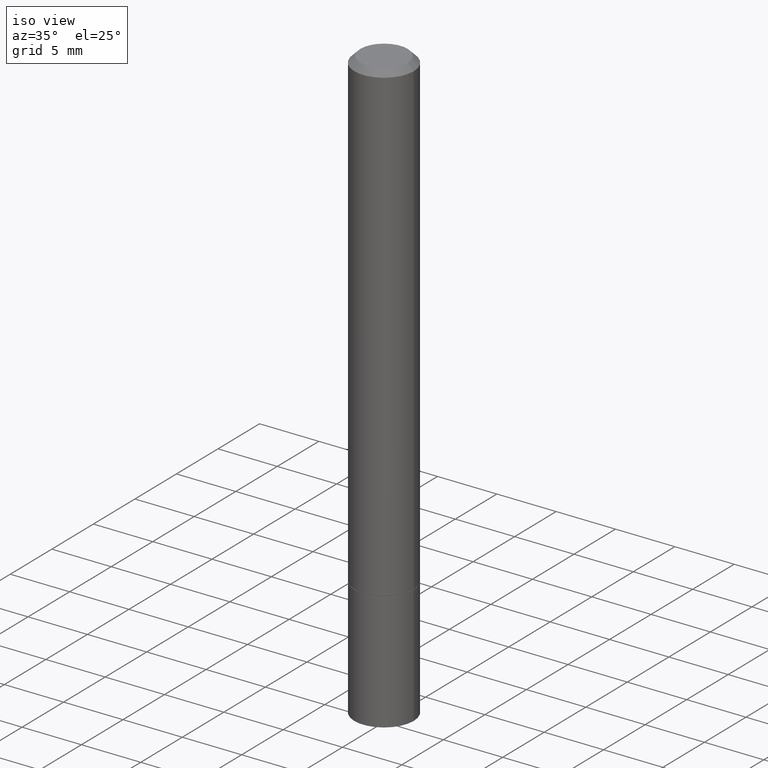
[diagram: clean part render]
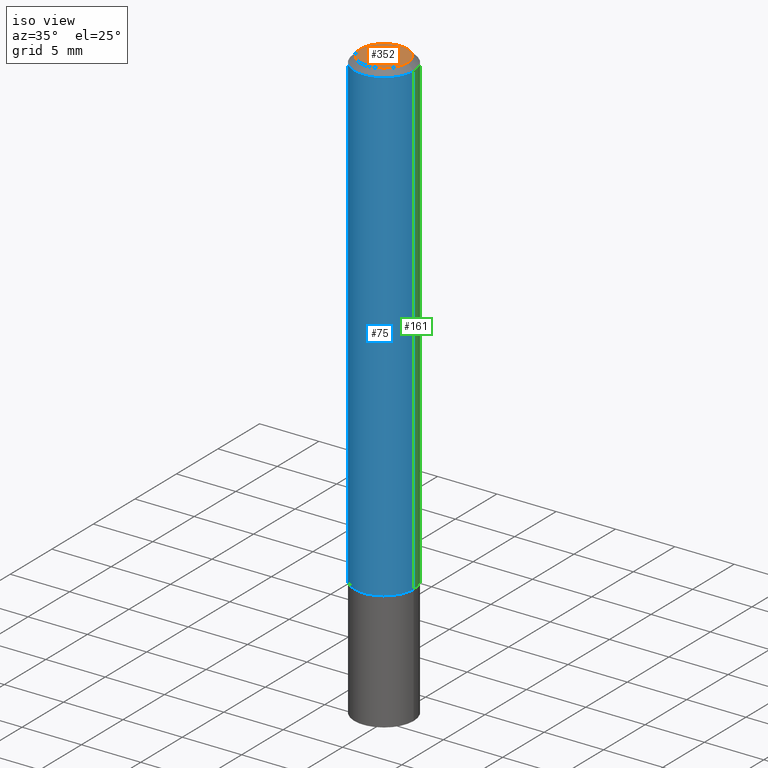
[diagram: same view with three faces highlighted in distinct colors, each labeled with its STEP entity id]
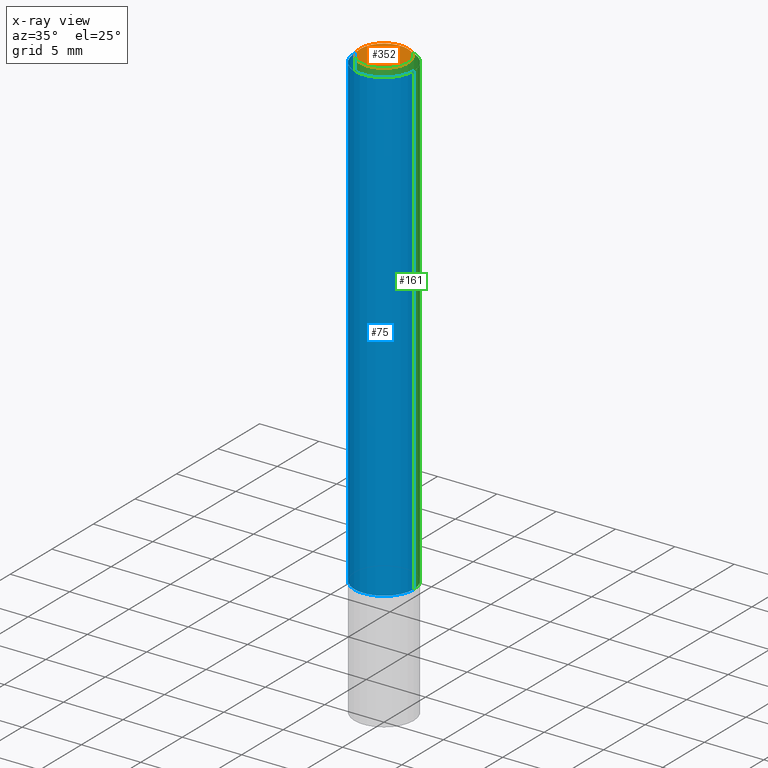
[diagram: x-ray of the same camera — body ghosted, the three highlighted faces saturated]
A machine part, iso view with three faces highlighted in distinct colors.
The next image is the same camera in x-ray (body ghosted, the three faces saturated) — at least one of them is partly hidden behind the body in this view.
Their STEP definitions:

[orange] entity #352 — the highlighted planar face has unit normal (0, -0, -1).
#5 = CARTESIAN_POINT ( 'NONE',  ( 0.000000000000000000, 0.000000000000000000, 0.000000000000000000 ) ) ;
#17 = PLANE ( 'NONE',  #59 ) ;
#23 = DIRECTION ( 'NONE',  ( -2.445468806185136597E-29, 3.491481338843145583E-15, 1.000000000000000000 ) ) ;
#35 = CIRCLE ( 'NONE', #116, 0.07844999999999982543 ) ;
#38 = VERTEX_POINT ( 'NONE', #210 ) ;
#49 = EDGE_CURVE ( 'NONE', #134, #38, #350, .T. ) ;
#59 = AXIS2_PLACEMENT_3D ( 'NONE', #133, #330, #203 ) ;
#88 = DIRECTION ( 'NONE',  ( -2.445468806185136597E-29, 3.491481338843145583E-15, 1.000000000000000000 ) ) ;
#116 = AXIS2_PLACEMENT_3D ( 'NONE', #308, #23, #138 ) ;
#133 = CARTESIAN_POINT ( 'NONE',  ( 5.478134220644863581E-16, 0.07844999999999982543, -2.739067110322441651E-16 ) ) ;
#134 = VERTEX_POINT ( 'NONE', #319 ) ;
#138 = DIRECTION ( 'NONE',  ( 1.000000000000000000, -6.982962677686265922E-15, 4.876176775795936914E-29 ) ) ;
#192 = AXIS2_PLACEMENT_3D ( 'NONE', #5, #88, #257 ) ;
#203 = DIRECTION ( 'NONE',  ( -1.000000000000000000, 6.982962677686265922E-15, -4.876176775795935793E-29 ) ) ;
#210 = CARTESIAN_POINT ( 'NONE',  ( -0.07844999999999982543, 5.827282354529176128E-16, -3.953055038153092165E-30 ) ) ;
#226 = EDGE_LOOP ( 'NONE', ( #302, #361 ) ) ;
#257 = DIRECTION ( 'NONE',  ( 1.000000000000000000, -6.982962677686265922E-15, 4.876176775795936914E-29 ) ) ;
#302 = ORIENTED_EDGE ( 'NONE', *, *, #313, .T. ) ;
#308 = CARTESIAN_POINT ( 'NONE',  ( 0.000000000000000000, 0.000000000000000000, 0.000000000000000000 ) ) ;
#313 = EDGE_CURVE ( 'NONE', #38, #134, #35, .T. ) ;
#319 = CARTESIAN_POINT ( 'NONE',  ( 0.07844999999999982543, -6.417258612913221441E-16, 4.159044147803931210E-30 ) ) ;
#330 = DIRECTION ( 'NONE',  ( 2.438088387897960049E-29, -3.491481338843145188E-15, -1.000000000000000000 ) ) ;
#338 = FACE_OUTER_BOUND ( 'NONE', #226, .T. ) ;
#350 = CIRCLE ( 'NONE', #192, 0.07844999999999982543 ) ;
#352 = ADVANCED_FACE ( 'NONE', ( #338 ), #17, .F. ) ;
#361 = ORIENTED_EDGE ( 'NONE', *, *, #49, .T. ) ;

[blue] entity #75 — the highlighted cylindrical surface (edge-blend (fillet) strip) has radius 2.5006 mm, axis along (-0, 0, 1).
#9 = ORIENTED_EDGE ( 'NONE', *, *, #18, .F. ) ;
#18 = EDGE_CURVE ( 'NONE', #323, #251, #33, .T. ) ;
#33 = LINE ( 'NONE', #230, #41 ) ;
#41 = VECTOR ( 'NONE', #89, 39.37007874015748143 ) ;
#48 = AXIS2_PLACEMENT_3D ( 'NONE', #312, #56, #256 ) ;
#50 = ORIENTED_EDGE ( 'NONE', *, *, #358, .T. ) ;
#56 = DIRECTION ( 'NONE',  ( -2.445468806185136597E-29, 3.491481338843145583E-15, 1.000000000000000000 ) ) ;
#62 = CARTESIAN_POINT ( 'NONE',  ( -0.09844999999999980156, 6.176430488413486702E-16, -0.02000000000000002123 ) ) ;
#66 = VERTEX_POINT ( 'NONE', #147 ) ;
#75 = ADVANCED_FACE ( 'NONE', ( #172 ), #91, .T. ) ;
#89 = DIRECTION ( 'NONE',  ( -2.445468806185136877E-29, 3.491481338843145188E-15, 1.000000000000000000 ) ) ;
#91 = CYLINDRICAL_SURFACE ( 'NONE', #284, 0.09844999999999991258 ) ;
#101 = LINE ( 'NONE', #229, #300 ) ;
#129 = CARTESIAN_POINT ( 'NONE',  ( 0.09844999999999999585, -6.182366006689555708E-15, -1.573800000000000088 ) ) ;
#140 = DIRECTION ( 'NONE',  ( -2.445468806185136877E-29, 3.491481338843145188E-15, 1.000000000000000000 ) ) ;
#145 = DIRECTION ( 'NONE',  ( -2.445468806185136597E-29, 3.491481338843145583E-15, 1.000000000000000000 ) ) ;
#147 = CARTESIAN_POINT ( 'NONE',  ( 0.09844999999999980156, -7.452456546574689274E-16, -0.02000000000000002123 ) ) ;
#156 = CARTESIAN_POINT ( 'NONE',  ( 4.890937612370278413E-31, -6.982962677686297772E-17, -0.02000000000000002123 ) ) ;
#165 = VERTEX_POINT ( 'NONE', #129 ) ;
#169 = CARTESIAN_POINT ( 'NONE',  ( 0.000000000000000000, 0.000000000000000000, 0.000000000000000000 ) ) ;
#172 = FACE_OUTER_BOUND ( 'NONE', #181, .T. ) ;
#181 = EDGE_LOOP ( 'NONE', ( #9, #50, #301, #198 ) ) ;
#198 = ORIENTED_EDGE ( 'NONE', *, *, #223, .F. ) ;
#212 = DIRECTION ( 'NONE',  ( -2.445468806185136597E-29, 3.491481338843145583E-15, 1.000000000000000000 ) ) ;
#223 = EDGE_CURVE ( 'NONE', #251, #66, #250, .T. ) ;
#229 = CARTESIAN_POINT ( 'NONE',  ( 0.09844999999999991258, -6.874726756182123629E-16, 4.800596035771094310E-30 ) ) ;
#230 = CARTESIAN_POINT ( 'NONE',  ( -0.09844999999999991258, 6.995293233558180118E-16, -4.842691596355949838E-30 ) ) ;
#237 = DIRECTION ( 'NONE',  ( 1.000000000000000000, -6.982962677686266711E-15, 4.876176775795935793E-29 ) ) ;
#250 = CIRCLE ( 'NONE', #360, 0.09844999999999980156 ) ;
#251 = VERTEX_POINT ( 'NONE', #62 ) ;
#256 = DIRECTION ( 'NONE',  ( 1.000000000000000000, -6.982962677686265922E-15, 0.000000000000000000 ) ) ;
#284 = AXIS2_PLACEMENT_3D ( 'NONE', #169, #145, #237 ) ;
#300 = VECTOR ( 'NONE', #140, 39.37007874015748143 ) ;
#301 = ORIENTED_EDGE ( 'NONE', *, *, #303, .T. ) ;
#303 = EDGE_CURVE ( 'NONE', #165, #66, #101, .T. ) ;
#312 = CARTESIAN_POINT ( 'NONE',  ( 3.848678807174168313E-29, -5.494893331071342359E-15, -1.573800000000000088 ) ) ;
#320 = DIRECTION ( 'NONE',  ( 1.000000000000000000, -6.982962677686266711E-15, 0.000000000000000000 ) ) ;
#323 = VERTEX_POINT ( 'NONE', #362 ) ;
#329 = CIRCLE ( 'NONE', #48, 0.09844999999999999585 ) ;
#358 = EDGE_CURVE ( 'NONE', #323, #165, #329, .T. ) ;
#360 = AXIS2_PLACEMENT_3D ( 'NONE', #156, #212, #320 ) ;
#362 = CARTESIAN_POINT ( 'NONE',  ( -0.09844999999999999585, -2.082832155568282351E-15, -1.573800000000000088 ) ) ;

[green] entity #161 — the highlighted cylindrical surface (edge-blend (fillet) strip) has radius 2.5006 mm, axis along (-0, 0, 1).
#3 = ORIENTED_EDGE ( 'NONE', *, *, #97, .F. ) ;
#18 = EDGE_CURVE ( 'NONE', #323, #251, #33, .T. ) ;
#33 = LINE ( 'NONE', #230, #41 ) ;
#37 = DIRECTION ( 'NONE',  ( -2.445468806185136597E-29, 3.491481338843145583E-15, 1.000000000000000000 ) ) ;
#40 = FACE_OUTER_BOUND ( 'NONE', #126, .T. ) ;
#41 = VECTOR ( 'NONE', #89, 39.37007874015748143 ) ;
#62 = CARTESIAN_POINT ( 'NONE',  ( -0.09844999999999980156, 6.176430488413486702E-16, -0.02000000000000002123 ) ) ;
#66 = VERTEX_POINT ( 'NONE', #147 ) ;
#83 = DIRECTION ( 'NONE',  ( -2.445468806185136597E-29, 3.491481338843145583E-15, 1.000000000000000000 ) ) ;
#89 = DIRECTION ( 'NONE',  ( -2.445468806185136877E-29, 3.491481338843145188E-15, 1.000000000000000000 ) ) ;
#95 = AXIS2_PLACEMENT_3D ( 'NONE', #217, #37, #326 ) ;
#97 = EDGE_CURVE ( 'NONE', #66, #251, #122, .T. ) ;
#101 = LINE ( 'NONE', #229, #300 ) ;
#102 = ORIENTED_EDGE ( 'NONE', *, *, #18, .T. ) ;
#103 = AXIS2_PLACEMENT_3D ( 'NONE', #285, #206, #315 ) ;
#122 = CIRCLE ( 'NONE', #103, 0.09844999999999980156 ) ;
#124 = AXIS2_PLACEMENT_3D ( 'NONE', #281, #83, #279 ) ;
#126 = EDGE_LOOP ( 'NONE', ( #152, #102, #3, #327 ) ) ;
#129 = CARTESIAN_POINT ( 'NONE',  ( 0.09844999999999999585, -6.182366006689555708E-15, -1.573800000000000088 ) ) ;
#140 = DIRECTION ( 'NONE',  ( -2.445468806185136877E-29, 3.491481338843145188E-15, 1.000000000000000000 ) ) ;
#147 = CARTESIAN_POINT ( 'NONE',  ( 0.09844999999999980156, -7.452456546574689274E-16, -0.02000000000000002123 ) ) ;
#152 = ORIENTED_EDGE ( 'NONE', *, *, #267, .T. ) ;
#161 = ADVANCED_FACE ( 'NONE', ( #40 ), #287, .T. ) ;
#165 = VERTEX_POINT ( 'NONE', #129 ) ;
#188 = CIRCLE ( 'NONE', #124, 0.09844999999999999585 ) ;
#206 = DIRECTION ( 'NONE',  ( -2.445468806185136597E-29, 3.491481338843145583E-15, 1.000000000000000000 ) ) ;
#217 = CARTESIAN_POINT ( 'NONE',  ( 0.000000000000000000, 0.000000000000000000, 0.000000000000000000 ) ) ;
#229 = CARTESIAN_POINT ( 'NONE',  ( 0.09844999999999991258, -6.874726756182123629E-16, 4.800596035771094310E-30 ) ) ;
#230 = CARTESIAN_POINT ( 'NONE',  ( -0.09844999999999991258, 6.995293233558180118E-16, -4.842691596355949838E-30 ) ) ;
#251 = VERTEX_POINT ( 'NONE', #62 ) ;
#267 = EDGE_CURVE ( 'NONE', #165, #323, #188, .T. ) ;
#279 = DIRECTION ( 'NONE',  ( 1.000000000000000000, -6.982962677686265922E-15, 0.000000000000000000 ) ) ;
#281 = CARTESIAN_POINT ( 'NONE',  ( 3.848678807174168313E-29, -5.494893331071342359E-15, -1.573800000000000088 ) ) ;
#285 = CARTESIAN_POINT ( 'NONE',  ( 4.890937612370278413E-31, -6.982962677686297772E-17, -0.02000000000000002123 ) ) ;
#287 = CYLINDRICAL_SURFACE ( 'NONE', #95, 0.09844999999999991258 ) ;
#300 = VECTOR ( 'NONE', #140, 39.37007874015748143 ) ;
#303 = EDGE_CURVE ( 'NONE', #165, #66, #101, .T. ) ;
#315 = DIRECTION ( 'NONE',  ( 1.000000000000000000, -6.982962677686266711E-15, 0.000000000000000000 ) ) ;
#323 = VERTEX_POINT ( 'NONE', #362 ) ;
#326 = DIRECTION ( 'NONE',  ( 1.000000000000000000, -6.982962677686266711E-15, 4.876176775795935793E-29 ) ) ;
#327 = ORIENTED_EDGE ( 'NONE', *, *, #303, .F. ) ;
#362 = CARTESIAN_POINT ( 'NONE',  ( -0.09844999999999999585, -2.082832155568282351E-15, -1.573800000000000088 ) ) ;